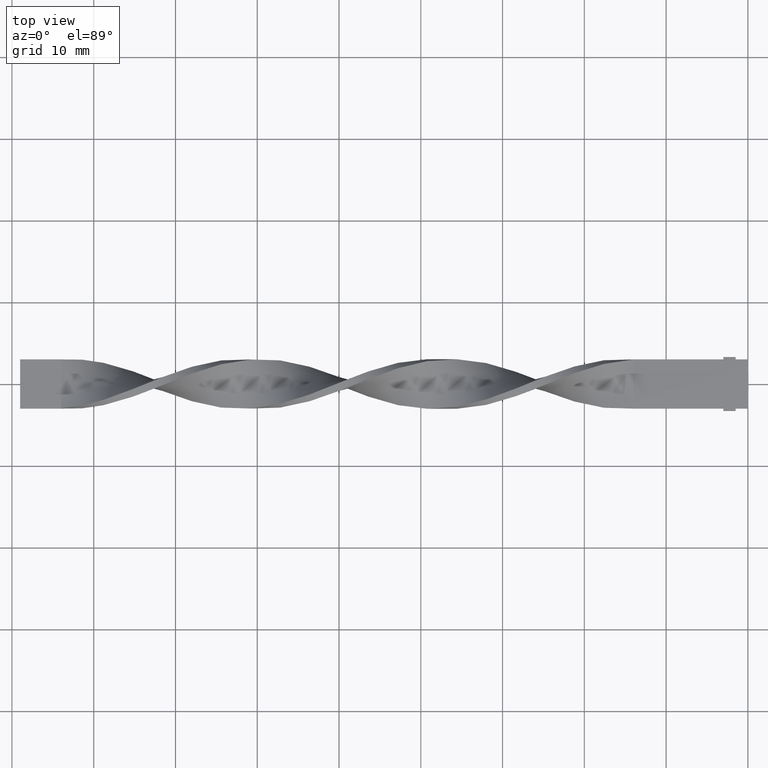
[diagram: clean part render]
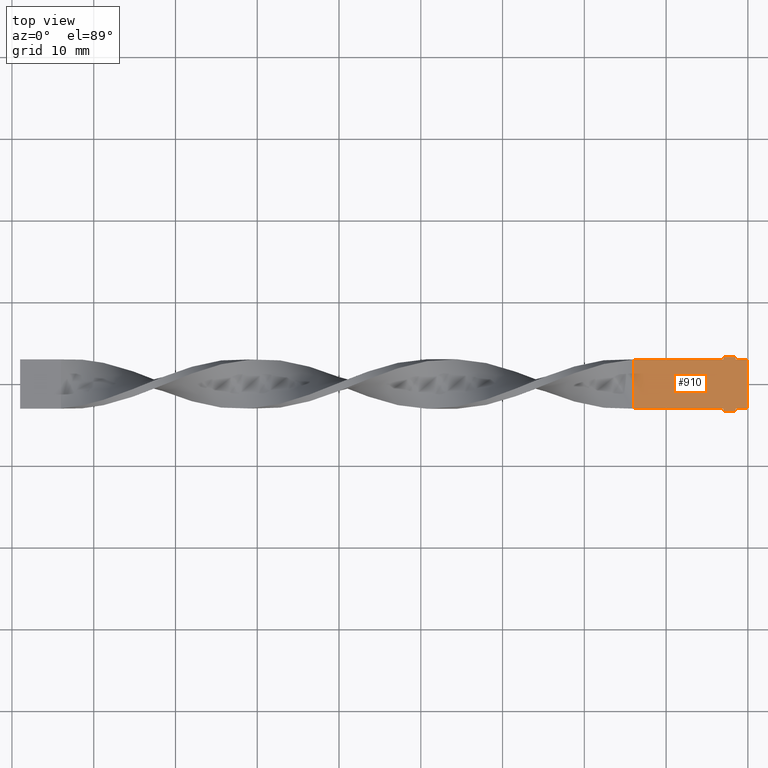
[diagram: same view with one face highlighted and labeled with its STEP entity id]
A machine part, top view. The second image highlights one B-rep face of the part: STEP entity #910.
In plain terms, the highlighted planar face has unit normal (0, 0, 1).
Its self-contained STEP definition (entity closure, byte-faithful):
#4 = CARTESIAN_POINT ( 'NONE',  ( -1.499999999999994005, -3.000000000000000888, 0.5000000000000000000 ) ) ;
#25 = CARTESIAN_POINT ( 'NONE',  ( -1.499999999999994005, -3.000000000000000888, 0.5000000000000000000 ) ) ;
#31 = CARTESIAN_POINT ( 'NONE',  ( 0.000000000000000000, 0.000000000000000000, 0.5000000000000000000 ) ) ;
#39 = VECTOR ( 'NONE', #1514, 1000.000000000000000 ) ;
#69 = VECTOR ( 'NONE', #1499, 1000.000000000000000 ) ;
#84 = VERTEX_POINT ( 'NONE', #785 ) ;
#91 = LINE ( 'NONE', #1334, #1321 ) ;
#92 = ORIENTED_EDGE ( 'NONE', *, *, #378, .T. ) ;
#98 = EDGE_CURVE ( 'NONE', #684, #1223, #249, .T. ) ;
#120 = EDGE_CURVE ( 'NONE', #773, #139, #1269, .T. ) ;
#123 = VECTOR ( 'NONE', #645, 1000.000000000000000 ) ;
#124 = VERTEX_POINT ( 'NONE', #634 ) ;
#127 = CARTESIAN_POINT ( 'NONE',  ( 0.000000000000000000, -3.000000000000000888, 0.5000000000000000000 ) ) ;
#137 = CARTESIAN_POINT ( 'NONE',  ( -1.499999999999994005, 3.000000000000000888, 0.5000000000000000000 ) ) ;
#139 = VERTEX_POINT ( 'NONE', #4 ) ;
#148 = DIRECTION ( 'NONE',  ( -1.000000000000000000, -1.577021341797096821E-16, 0.000000000000000000 ) ) ;
#150 = CARTESIAN_POINT ( 'NONE',  ( -1.499999999999994005, 3.300000000000000711, 0.5000000000000000000 ) ) ;
#153 = EDGE_LOOP ( 'NONE', ( #1388, #1515, #834, #1103, #92, #912, #277, #1113, #882, #1038, #1500, #540 ) ) ;
#158 = CARTESIAN_POINT ( 'NONE',  ( 0.000000000000000000, -3.000000000000000888, 0.5000000000000000000 ) ) ;
#189 = EDGE_CURVE ( 'NONE', #84, #333, #1525, .T. ) ;
#192 = DIRECTION ( 'NONE',  ( 1.445602896647339706E-15, -1.000000000000000000, 0.000000000000000000 ) ) ;
#196 = VECTOR ( 'NONE', #1404, 1000.000000000000000 ) ;
#225 = LINE ( 'NONE', #722, #243 ) ;
#243 = VECTOR ( 'NONE', #192, 1000.000000000000000 ) ;
#249 = LINE ( 'NONE', #137, #39 ) ;
#252 = LINE ( 'NONE', #1283, #1135 ) ;
#266 = VECTOR ( 'NONE', #1389, 1000.000000000000000 ) ;
#275 = EDGE_CURVE ( 'NONE', #333, #1251, #693, .T. ) ;
#277 = ORIENTED_EDGE ( 'NONE', *, *, #1083, .T. ) ;
#333 = VERTEX_POINT ( 'NONE', #521 ) ;
#378 = EDGE_CURVE ( 'NONE', #1223, #1167, #1267, .T. ) ;
#385 = LINE ( 'NONE', #782, #797 ) ;
#401 = VECTOR ( 'NONE', #641, 1000.000000000000000 ) ;
#412 = DIRECTION ( 'NONE',  ( -1.000000000000000000, 0.000000000000000000, 0.000000000000000000 ) ) ;
#414 = VERTEX_POINT ( 'NONE', #600 ) ;
#415 = CARTESIAN_POINT ( 'NONE',  ( -2.999999999999993339, 3.000000000000000888, 0.5000000000000000000 ) ) ;
#455 = DIRECTION ( 'NONE',  ( 1.445602896647339706E-15, 1.000000000000000000, 0.000000000000000000 ) ) ;
#508 = AXIS2_PLACEMENT_3D ( 'NONE', #31, #757, #1143 ) ;
#516 = VERTEX_POINT ( 'NONE', #809 ) ;
#521 = CARTESIAN_POINT ( 'NONE',  ( -2.999999999999993783, -3.300000000000000711, 0.5000000000000000000 ) ) ;
#525 = LINE ( 'NONE', #25, #196 ) ;
#534 = CARTESIAN_POINT ( 'NONE',  ( -2.999999999999993783, 3.300000000000000711, 0.5000000000000000000 ) ) ;
#540 = ORIENTED_EDGE ( 'NONE', *, *, #985, .F. ) ;
#572 = CARTESIAN_POINT ( 'NONE',  ( -1.499999999999994005, 3.300000000000000711, 0.5000000000000000000 ) ) ;
#600 = CARTESIAN_POINT ( 'NONE',  ( -13.99999999999999822, 2.999999999999999112, 0.5000000000000000000 ) ) ;
#632 = EDGE_CURVE ( 'NONE', #773, #516, #852, .T. ) ;
#634 = CARTESIAN_POINT ( 'NONE',  ( -13.99999999999999822, -2.999999999999999112, 0.5000000000000000000 ) ) ;
#641 = DIRECTION ( 'NONE',  ( -1.000000000000000000, 0.000000000000000000, 0.000000000000000000 ) ) ;
#645 = DIRECTION ( 'NONE',  ( -1.000000000000000000, 0.000000000000000000, 0.000000000000000000 ) ) ;
#684 = VERTEX_POINT ( 'NONE', #870 ) ;
#693 = LINE ( 'NONE', #1201, #877 ) ;
#698 = CARTESIAN_POINT ( 'NONE',  ( -2.999999999999993339, -3.000000000000000888, 0.5000000000000000000 ) ) ;
#722 = CARTESIAN_POINT ( 'NONE',  ( -2.999999999999993783, 3.300000000000000711, 0.5000000000000000000 ) ) ;
#757 = DIRECTION ( 'NONE',  ( 0.000000000000000000, 0.000000000000000000, 1.000000000000000000 ) ) ;
#773 = VERTEX_POINT ( 'NONE', #127 ) ;
#782 = CARTESIAN_POINT ( 'NONE',  ( -2.999999999999993339, 3.000000000000000888, 0.5000000000000000000 ) ) ;
#785 = CARTESIAN_POINT ( 'NONE',  ( -1.499999999999994005, -3.300000000000000711, 0.5000000000000000000 ) ) ;
#797 = VECTOR ( 'NONE', #148, 1000.000000000000000 ) ;
#809 = CARTESIAN_POINT ( 'NONE',  ( 0.000000000000000000, 3.000000000000000888, 0.5000000000000000000 ) ) ;
#834 = ORIENTED_EDGE ( 'NONE', *, *, #1009, .T. ) ;
#852 = LINE ( 'NONE', #953, #69 ) ;
#870 = CARTESIAN_POINT ( 'NONE',  ( -1.499999999999994005, 3.000000000000000888, 0.5000000000000000000 ) ) ;
#877 = VECTOR ( 'NONE', #455, 1000.000000000000000 ) ;
#882 = ORIENTED_EDGE ( 'NONE', *, *, #1521, .F. ) ;
#905 = FACE_OUTER_BOUND ( 'NONE', #153, .T. ) ;
#910 = ADVANCED_FACE ( 'NONE', ( #905 ), #1151, .T. ) ;
#912 = ORIENTED_EDGE ( 'NONE', *, *, #1615, .T. ) ;
#928 = VECTOR ( 'NONE', #412, 1000.000000000000000 ) ;
#953 = CARTESIAN_POINT ( 'NONE',  ( 0.000000000000000000, -3.000000000000000888, 0.5000000000000000000 ) ) ;
#963 = EDGE_CURVE ( 'NONE', #414, #124, #252, .T. ) ;
#985 = EDGE_CURVE ( 'NONE', #139, #84, #525, .T. ) ;
#1002 = LINE ( 'NONE', #1032, #266 ) ;
#1009 = EDGE_CURVE ( 'NONE', #516, #684, #1002, .T. ) ;
#1032 = CARTESIAN_POINT ( 'NONE',  ( 0.000000000000000000, 3.000000000000000888, 0.5000000000000000000 ) ) ;
#1038 = ORIENTED_EDGE ( 'NONE', *, *, #275, .F. ) ;
#1068 = VERTEX_POINT ( 'NONE', #415 ) ;
#1076 = DIRECTION ( 'NONE',  ( -1.000000000000000000, 1.577021341797096821E-16, 0.000000000000000000 ) ) ;
#1083 = EDGE_CURVE ( 'NONE', #1068, #414, #385, .T. ) ;
#1103 = ORIENTED_EDGE ( 'NONE', *, *, #98, .T. ) ;
#1113 = ORIENTED_EDGE ( 'NONE', *, *, #963, .T. ) ;
#1135 = VECTOR ( 'NONE', #1261, 1000.000000000000000 ) ;
#1143 = DIRECTION ( 'NONE',  ( 1.000000000000000000, 0.000000000000000000, -0.000000000000000000 ) ) ;
#1151 = PLANE ( 'NONE',  #508 ) ;
#1167 = VERTEX_POINT ( 'NONE', #534 ) ;
#1201 = CARTESIAN_POINT ( 'NONE',  ( -2.999999999999993783, -3.300000000000000711, 0.5000000000000000000 ) ) ;
#1223 = VERTEX_POINT ( 'NONE', #572 ) ;
#1251 = VERTEX_POINT ( 'NONE', #698 ) ;
#1261 = DIRECTION ( 'NONE',  ( 0.000000000000000000, -1.000000000000000000, 0.000000000000000000 ) ) ;
#1267 = LINE ( 'NONE', #150, #123 ) ;
#1269 = LINE ( 'NONE', #158, #401 ) ;
#1283 = CARTESIAN_POINT ( 'NONE',  ( -13.99999999999999822, 2.999999999999999112, 0.5000000000000000000 ) ) ;
#1321 = VECTOR ( 'NONE', #1076, 1000.000000000000000 ) ;
#1334 = CARTESIAN_POINT ( 'NONE',  ( -2.999999999999993339, -3.000000000000000888, 0.5000000000000000000 ) ) ;
#1388 = ORIENTED_EDGE ( 'NONE', *, *, #120, .F. ) ;
#1389 = DIRECTION ( 'NONE',  ( -1.000000000000000000, 0.000000000000000000, 0.000000000000000000 ) ) ;
#1404 = DIRECTION ( 'NONE',  ( 0.000000000000000000, -1.000000000000000000, 0.000000000000000000 ) ) ;
#1499 = DIRECTION ( 'NONE',  ( 0.000000000000000000, 1.000000000000000000, 0.000000000000000000 ) ) ;
#1500 = ORIENTED_EDGE ( 'NONE', *, *, #189, .F. ) ;
#1514 = DIRECTION ( 'NONE',  ( 0.000000000000000000, 1.000000000000000000, 0.000000000000000000 ) ) ;
#1515 = ORIENTED_EDGE ( 'NONE', *, *, #632, .T. ) ;
#1521 = EDGE_CURVE ( 'NONE', #1251, #124, #91, .T. ) ;
#1525 = LINE ( 'NONE', #1532, #928 ) ;
#1532 = CARTESIAN_POINT ( 'NONE',  ( -1.499999999999994005, -3.300000000000000711, 0.5000000000000000000 ) ) ;
#1615 = EDGE_CURVE ( 'NONE', #1167, #1068, #225, .T. ) ;